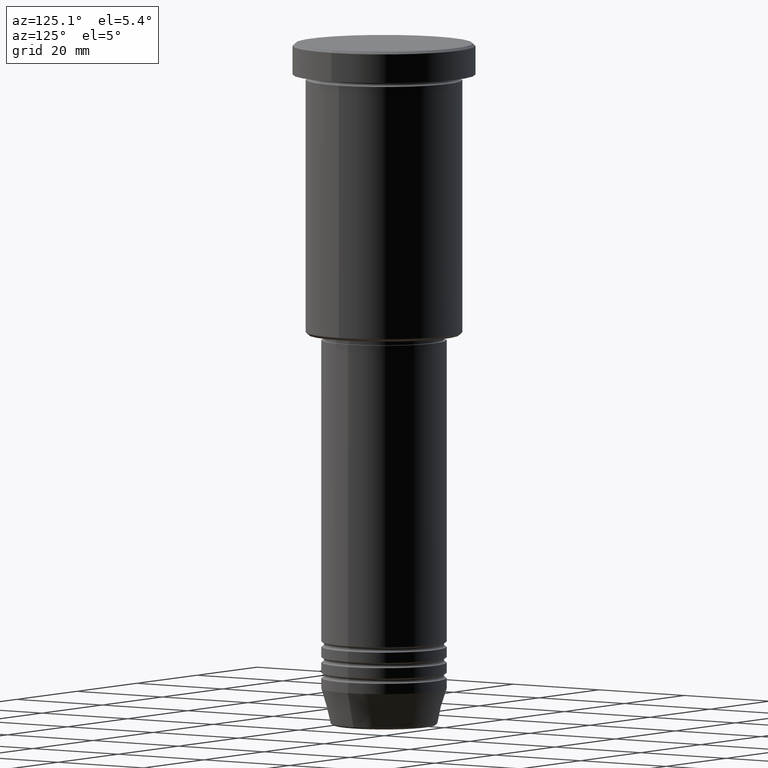
[diagram: clean part render]
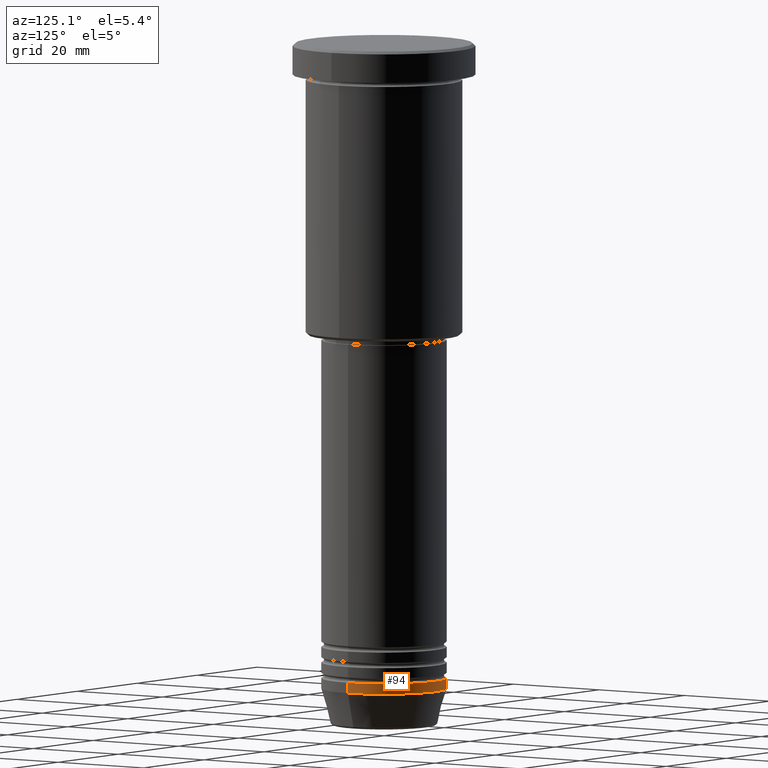
[diagram: same view with one face highlighted and labeled with its STEP entity id]
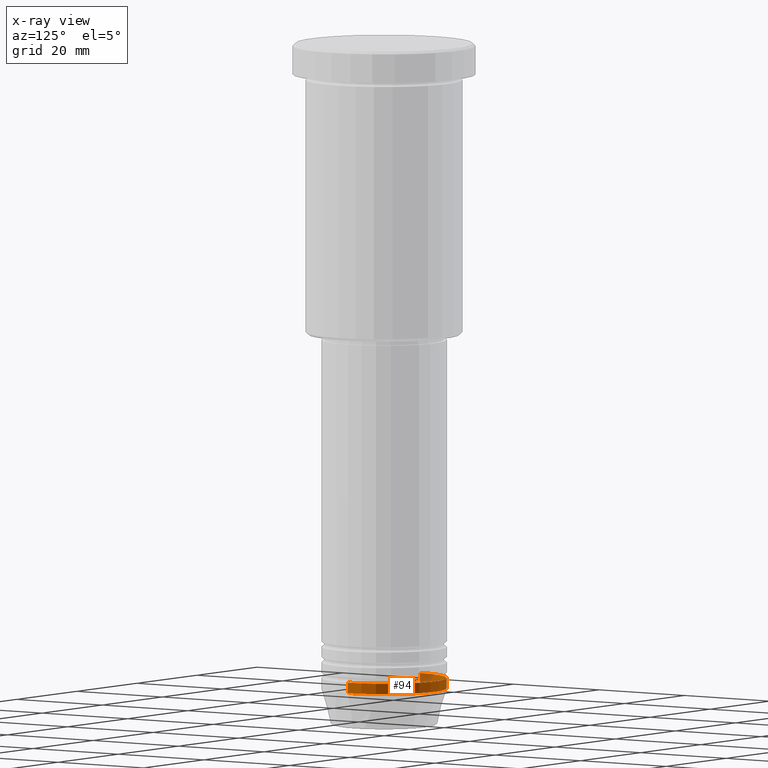
[diagram: x-ray of the same camera — body ghosted, the highlighted face saturated]
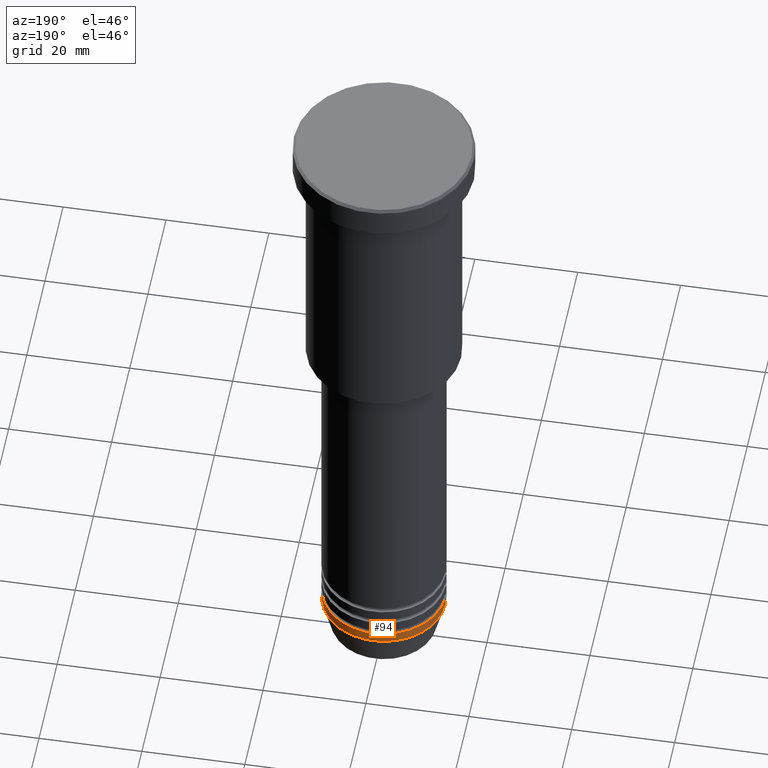
[diagram: same view with one face highlighted and labeled with its STEP entity id]
A machine part, auxiliary view. The second image highlights one B-rep face of the part: STEP entity #94.
The next image is the same camera in x-ray: the body ghosted, the highlighted face saturated — about 9% of this face is hidden behind the body in this view.
A second angle (auxiliary view) of the same face is appended — the face is thin or edge-on in the first view.
In plain terms, the highlighted cylindrical surface (partial cylindrical patch) has radius 12 mm, axis along (-0, -0, 1).
Its self-contained STEP definition (entity closure, byte-faithful):
#46 = CARTESIAN_POINT ( 'NONE',  ( 12.00000000000000000, 0.000000000000000000, 0.000000000000000000 ) ) ;
#94 = ADVANCED_FACE ( 'NONE', ( #414 ), #775, .T. ) ;
#152 = VERTEX_POINT ( 'NONE', #429 ) ;
#160 = DIRECTION ( 'NONE',  ( -0.000000000000000000, -0.000000000000000000, 1.000000000000000000 ) ) ;
#332 = DIRECTION ( 'NONE',  ( -0.000000000000000000, -0.000000000000000000, 1.000000000000000000 ) ) ;
#373 = CARTESIAN_POINT ( 'NONE',  ( -12.00000000000000000, 1.469576158976823947E-15, -124.0000000000000000 ) ) ;
#414 = FACE_OUTER_BOUND ( 'NONE', #665, .T. ) ;
#419 = DIRECTION ( 'NONE',  ( -0.000000000000000000, -0.000000000000000000, 1.000000000000000000 ) ) ;
#422 = EDGE_CURVE ( 'NONE', #894, #449, #875, .T. ) ;
#429 = CARTESIAN_POINT ( 'NONE',  ( 12.00000000000000000, 0.000000000000000000, -122.0000000000000000 ) ) ;
#449 = VERTEX_POINT ( 'NONE', #373 ) ;
#469 = CARTESIAN_POINT ( 'NONE',  ( 12.00000000000000000, 0.000000000000000000, -124.0000000000000000 ) ) ;
#519 = VECTOR ( 'NONE', #778, 1000.000000000000000 ) ;
#622 = LINE ( 'NONE', #885, #977 ) ;
#634 = ORIENTED_EDGE ( 'NONE', *, *, #640, .F. ) ;
#639 = DIRECTION ( 'NONE',  ( -0.000000000000000000, -0.000000000000000000, 1.000000000000000000 ) ) ;
#640 = EDGE_CURVE ( 'NONE', #894, #152, #1052, .T. ) ;
#641 = DIRECTION ( 'NONE',  ( 1.000000000000000000, 0.000000000000000000, 0.000000000000000000 ) ) ;
#665 = EDGE_LOOP ( 'NONE', ( #984, #722, #848, #634 ) ) ;
#691 = CARTESIAN_POINT ( 'NONE',  ( 0.000000000000000000, 0.000000000000000000, 0.000000000000000000 ) ) ;
#722 = ORIENTED_EDGE ( 'NONE', *, *, #773, .T. ) ;
#773 = EDGE_CURVE ( 'NONE', #449, #865, #622, .T. ) ;
#775 = CYLINDRICAL_SURFACE ( 'NONE', #1098, 12.00000000000000000 ) ;
#778 = DIRECTION ( 'NONE',  ( -0.000000000000000000, -0.000000000000000000, 1.000000000000000000 ) ) ;
#848 = ORIENTED_EDGE ( 'NONE', *, *, #1170, .F. ) ;
#865 = VERTEX_POINT ( 'NONE', #929 ) ;
#875 = CIRCLE ( 'NONE', #1010, 12.00000000000000000 ) ;
#885 = CARTESIAN_POINT ( 'NONE',  ( -12.00000000000000000, 1.469576158976823947E-15, 0.000000000000000000 ) ) ;
#894 = VERTEX_POINT ( 'NONE', #469 ) ;
#921 = CARTESIAN_POINT ( 'NONE',  ( 0.000000000000000000, 0.000000000000000000, -124.0000000000000000 ) ) ;
#929 = CARTESIAN_POINT ( 'NONE',  ( -12.00000000000000000, 1.469576158976823947E-15, -122.0000000000000000 ) ) ;
#977 = VECTOR ( 'NONE', #639, 1000.000000000000000 ) ;
#984 = ORIENTED_EDGE ( 'NONE', *, *, #422, .T. ) ;
#1010 = AXIS2_PLACEMENT_3D ( 'NONE', #921, #160, #641 ) ;
#1041 = DIRECTION ( 'NONE',  ( 1.000000000000000000, 0.000000000000000000, 0.000000000000000000 ) ) ;
#1050 = CIRCLE ( 'NONE', #1159, 12.00000000000000000 ) ;
#1052 = LINE ( 'NONE', #46, #519 ) ;
#1098 = AXIS2_PLACEMENT_3D ( 'NONE', #691, #419, #1143 ) ;
#1143 = DIRECTION ( 'NONE',  ( 1.000000000000000000, 0.000000000000000000, 0.000000000000000000 ) ) ;
#1145 = CARTESIAN_POINT ( 'NONE',  ( 0.000000000000000000, 0.000000000000000000, -122.0000000000000000 ) ) ;
#1159 = AXIS2_PLACEMENT_3D ( 'NONE', #1145, #332, #1041 ) ;
#1170 = EDGE_CURVE ( 'NONE', #152, #865, #1050, .T. ) ;